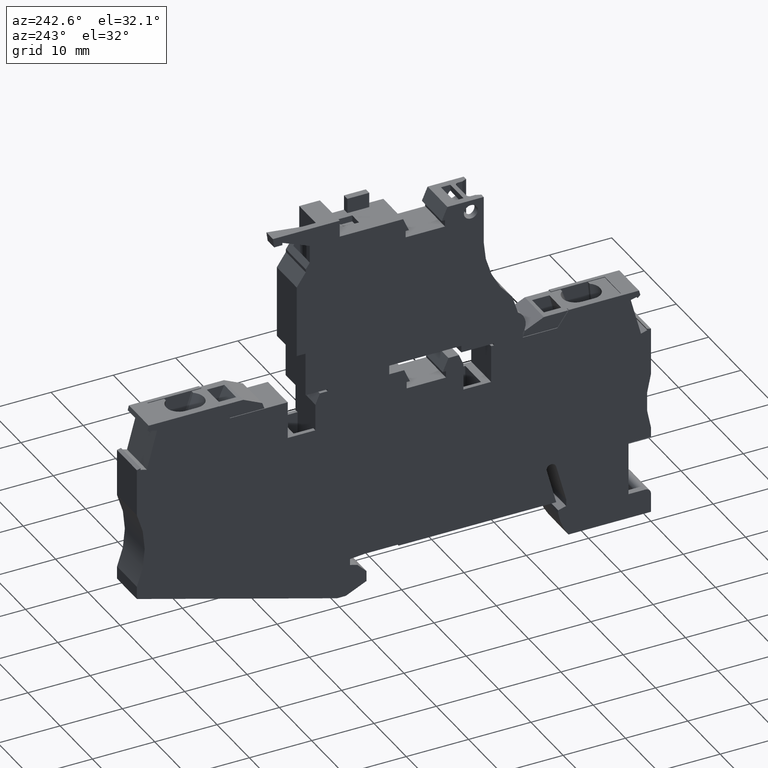
[diagram: clean part render]
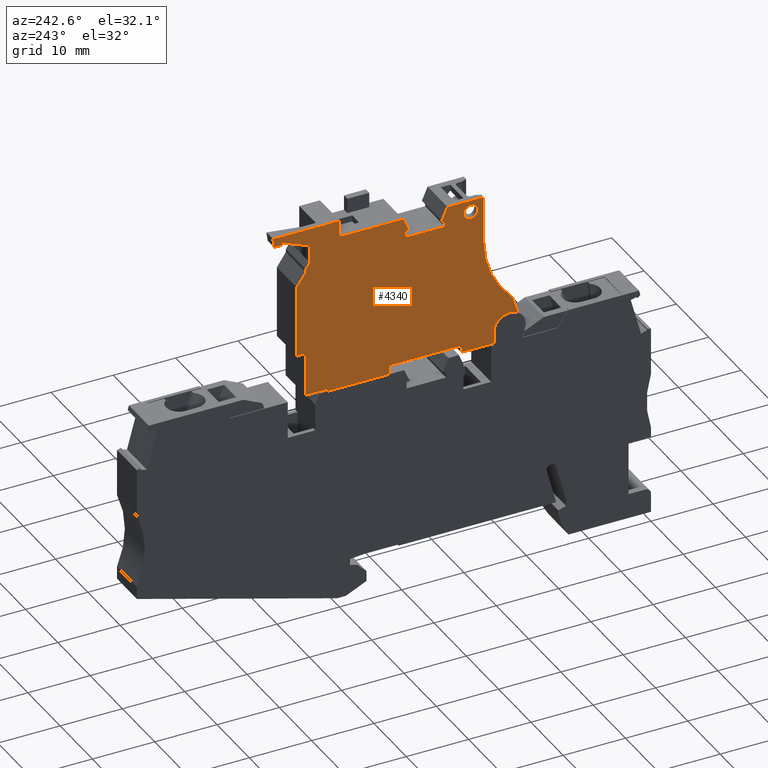
[diagram: same view with one face highlighted and labeled with its STEP entity id]
A machine part, auxiliary view. The second image highlights one B-rep face of the part: STEP entity #4340.
In plain terms, the highlighted planar face has unit normal (-1, -0, -0).
Its self-contained STEP definition (entity closure, byte-faithful):
#1060=CARTESIAN_POINT('',(53.0297787793713,35.8118002852794,
-5.65000000003927));
#1070=VERTEX_POINT('',#1060);
#1120=CARTESIAN_POINT('',(-2.48689957516035E-14,29.3005621830834,
-5.65000000003224));
#1130=DIRECTION('',(0.992546151641339,0.121869343405015,
-1.31610000675408E-13));
#1140=VECTOR('',#1130,1.);
#1150=LINE('',#1120,#1140);
#1440=CARTESIAN_POINT('',(43.7402238527537,30.9982478358278,
-5.65000000003798));
#1450=DIRECTION('',(-1.30635874114573E-13,-1.60400341780722E-14,-1.));
#1460=DIRECTION('',(0.992546151641338,0.121869343405017,
-1.31616922552198E-13));
#1470=AXIS2_PLACEMENT_3D('',#1440,#1450,#1460);
#1480=PLANE('',#1470);
#1490=CARTESIAN_POINT('',(-2.48689957516035E-14,29.6531906229255,
-5.65000000003224));
#1500=DIRECTION('',(-0.992546151641322,-0.121869343405148,
1.31610000675408E-13));
#1510=VECTOR('',#1500,1.);
#1520=LINE('',#1490,#1510);
#1530=CARTESIAN_POINT('',(56.5106633528564,36.5918276090379,
-5.65000000003973));
#1540=VERTEX_POINT('',#1530);
#1550=CARTESIAN_POINT('',(52.987124509066,36.1591914392788,
-5.65000000003927));
#1560=VERTEX_POINT('',#1550);
#1570=EDGE_CURVE('',#1540,#1560,#1520,.T.);
#1580=ORIENTED_EDGE('',*,*,#1570,.T.);
#1590=CARTESIAN_POINT('',(61.0035748384669,-3.5527136788005E-15,
-5.65000000003974));
#1600=DIRECTION('',(0.121869343405148,-0.992546151641322,0.));
#1610=VECTOR('',#1600,1.);
#1620=LINE('',#1590,#1610);
#1630=CARTESIAN_POINT('',(55.6575779494474,43.539650667049,
-5.65000000003973));
#1640=VERTEX_POINT('',#1630);
#1650=EDGE_CURVE('',#1640,#1540,#1620,.T.);
#1660=ORIENTED_EDGE('',*,*,#1650,.T.);
#1670=CARTESIAN_POINT('',(-2.48689957516035E-14,36.7057593976069,
-5.65000000003235));
#1680=DIRECTION('',(-0.992546151641322,-0.121869343405148,
1.31603061781504E-13));
#1690=VECTOR('',#1680,1.);
#1700=LINE('',#1670,#1690);
#1710=CARTESIAN_POINT('',(57.0471425610681,43.7102677477331,
-5.65000000003992));
#1720=VERTEX_POINT('',#1710);
#1730=EDGE_CURVE('',#1720,#1640,#1700,.T.);
#1740=ORIENTED_EDGE('',*,*,#1730,.T.);
#1750=CARTESIAN_POINT('',(62.4140885934219,-3.5527136788005E-15,
-5.65000000003992));
#1760=DIRECTION('',(0.121869343405148,-0.992546151641322,0.));
#1770=VECTOR('',#1760,1.);
#1780=LINE('',#1750,#1770);
#1790=CARTESIAN_POINT('',(55.6419397182918,55.1547265008776,
-5.65000000003992));
#1800=VERTEX_POINT('',#1790);
#1810=EDGE_CURVE('',#1800,#1720,#1780,.T.);
#1820=ORIENTED_EDGE('',*,*,#1810,.T.);
#1830=CARTESIAN_POINT('',(103.737130571274,-3.5527136788005E-15,
-5.65000000004532));
#1840=DIRECTION('',(0.657225128829871,-0.753694321349551,
-7.38298311375729E-14));
#1850=VECTOR('',#1840,1.);
#1860=LINE('',#1830,#1850);
#1870=CARTESIAN_POINT('',(53.9416353820199,57.1046058749299,
-5.65000000003972));
#1880=VERTEX_POINT('',#1870);
#1890=EDGE_CURVE('',#1880,#1800,#1860,.T.);
#1900=ORIENTED_EDGE('',*,*,#1890,.T.);
#1910=CARTESIAN_POINT('',(60.9531993399066,-3.5527136788005E-15,
-5.65000000003973));
#1920=DIRECTION('',(0.121869343405148,-0.992546151641322,
-6.93889390390723E-18));
#1930=VECTOR('',#1920,1.);
#1940=LINE('',#1910,#1930);
#1950=CARTESIAN_POINT('',(53.8827931730543,57.5838372093331,
-5.65000000003973));
#1960=VERTEX_POINT('',#1950);
#1970=EDGE_CURVE('',#1960,#1880,#1940,.T.);
#1980=ORIENTED_EDGE('',*,*,#1970,.T.);
#1990=CARTESIAN_POINT('',(104.096180426201,-3.5527136788005E-15,
-5.65000000004537));
#2000=DIRECTION('',(0.657225128829871,-0.753694321349551,
-7.38298311375729E-14));
#2010=VECTOR('',#2000,1.);
#2020=LINE('',#1990,#2010);
#2030=CARTESIAN_POINT('',(53.120587793257,58.4579210525331,
-5.65000000003964));
#2040=VERTEX_POINT('',#2030);
#2050=EDGE_CURVE('',#2040,#1960,#2020,.T.);
#2060=ORIENTED_EDGE('',*,*,#2050,.T.);
#2070=CARTESIAN_POINT('',(60.2983179609894,-3.5527136788005E-15,
-5.65000000003964));
#2080=DIRECTION('',(0.121869343405154,-0.992546151641321,0.));
#2090=VECTOR('',#2080,1.);
#2100=LINE('',#2070,#2090);
#2110=CARTESIAN_POINT('',(52.7779846196523,61.248199985694,
-5.65000000003964));
#2120=VERTEX_POINT('',#2110);
#2130=EDGE_CURVE('',#2120,#2040,#2100,.T.);
#2140=ORIENTED_EDGE('',*,*,#2130,.T.);
#2150=CARTESIAN_POINT('',(-2.48689957516035E-14,32.0150940717778,
-5.65000000003228));
#2160=DIRECTION('',(-0.874775745360367,-0.48452801294581,
1.22013510406305E-13));
#2170=VECTOR('',#2160,1.);
#2180=LINE('',#2150,#2170);
#2190=CARTESIAN_POINT('',(56.9384875633086,63.5526537097906,
-5.65000000004022));
#2200=VERTEX_POINT('',#2190);
#2210=EDGE_CURVE('',#2200,#2120,#2180,.T.);
#2220=ORIENTED_EDGE('',*,*,#2210,.T.);
#2230=CARTESIAN_POINT('',(64.74177224328,-3.5527136788005E-15,
-5.65000000004022));
#2240=DIRECTION('',(-0.121869343405153,0.992546151641321,0.));
#2250=VECTOR('',#2240,1.);
#2260=LINE('',#2230,#2250);
#2270=CARTESIAN_POINT('',(56.984872004232,63.174882754043,
-5.65000000004022));
#2280=VERTEX_POINT('',#2270);
#2290=EDGE_CURVE('',#2280,#2200,#2260,.T.);
#2300=ORIENTED_EDGE('',*,*,#2290,.T.);
#2310=CARTESIAN_POINT('',(-2.48689957516035E-14,56.1780202668951,
-5.65000000003267));
#2320=DIRECTION('',(-0.992546151641322,-0.121869343405148,
1.31603061781504E-13));
#2330=VECTOR('',#2320,1.);
#2340=LINE('',#2310,#2330);
#2350=CARTESIAN_POINT('',(58.2862248796813,63.3346687954348,
-5.6500000000404));
#2360=VERTEX_POINT('',#2350);
#2370=EDGE_CURVE('',#2360,#2280,#2340,.T.);
#2380=ORIENTED_EDGE('',*,*,#2370,.T.);
#2390=CARTESIAN_POINT('',(57.3829516360959,-3.5527136788005E-15,
-5.65000000003926));
#2400=DIRECTION('',(-0.0142604581498358,-0.999898314496708,
1.79006115486047E-14));
#2410=VECTOR('',#2400,1.);
#2420=LINE('',#2390,#2410);
#2430=CARTESIAN_POINT('',(58.3071379873647,64.8010298971474,
-5.65000000004042));
#2440=VERTEX_POINT('',#2430);
#2450=EDGE_CURVE('',#2440,#2360,#2420,.T.);
#2460=ORIENTED_EDGE('',*,*,#2450,.T.);
#2470=CARTESIAN_POINT('',(-2.48689957516035E-14,57.6418135618637,
-5.65000000003269));
#2480=DIRECTION('',(0.992546151641322,0.121869343405148,
-1.31603061781504E-13));
#2490=VECTOR('',#2480,1.);
#2500=LINE('',#2470,#2490);
#2510=CARTESIAN_POINT('',(47.6532108560745,63.4928921324403,
-5.65000000003901));
#2520=VERTEX_POINT('',#2510);
#2530=EDGE_CURVE('',#2520,#2440,#2500,.T.);
#2540=ORIENTED_EDGE('',*,*,#2530,.T.);
#2550=CARTESIAN_POINT('',(55.4491577370117,-3.5527136788005E-15,
-5.65000000003901));
#2560=DIRECTION('',(-0.121869343405147,0.992546151641322,0.));
#2570=VECTOR('',#2560,1.);
#2580=LINE('',#2550,#2570);
#2590=CARTESIAN_POINT('',(47.9798206964009,60.832868446037,
-5.65000000003901));
#2600=VERTEX_POINT('',#2590);
#2610=EDGE_CURVE('',#2600,#2520,#2580,.T.);
#2620=ORIENTED_EDGE('',*,*,#2610,.T.);
#2630=CARTESIAN_POINT('',(-2.48689957516035E-14,54.9416872296293,
-5.65000000003265));
#2640=DIRECTION('',(0.992546151641322,0.121869343405148,
-1.31603061781504E-13));
#2650=VECTOR('',#2640,1.);
#2660=LINE('',#2630,#2650);
#2670=CARTESIAN_POINT('',(37.8907575013103,59.5940872517062,
-5.65000000003767));
#2680=VERTEX_POINT('',#2670);
#2690=EDGE_CURVE('',#2680,#2600,#2660,.T.);
#2700=ORIENTED_EDGE('',*,*,#2690,.T.);
#2710=CARTESIAN_POINT('',(19.9852219604105,-3.5527136788005E-15,
-5.65000000003438));
#2720=DIRECTION('',(0.287750497360487,0.957705409439037,
-5.295763827462E-14));
#2730=VECTOR('',#2720,1.);
#2740=LINE('',#2710,#2730);
#2750=CARTESIAN_POINT('',(37.2291348310475,57.3920420210964,
-5.65000000003755));
#2760=VERTEX_POINT('',#2750);
#2770=EDGE_CURVE('',#2760,#2680,#2740,.T.);
#2780=ORIENTED_EDGE('',*,*,#2770,.T.);
#2790=CARTESIAN_POINT('',(-2.48689957516035E-14,52.8208790480712,
-5.65000000003261));
#2800=DIRECTION('',(-0.992546151641322,-0.121869343405148,
1.31603061781504E-13));
#2810=VECTOR('',#2800,1.);
#2820=LINE('',#2790,#2810);
#2830=CARTESIAN_POINT('',(37.7530984227555,57.4563766606334,
-5.65000000003762));
#2840=VERTEX_POINT('',#2830);
#2850=EDGE_CURVE('',#2840,#2760,#2820,.T.);
#2860=ORIENTED_EDGE('',*,*,#2850,.T.);
#2870=CARTESIAN_POINT('',(44.8078544021033,-3.5527136788005E-15,
-5.65000000003762));
#2880=DIRECTION('',(-0.121869343405148,0.992546151641322,0.));
#2890=VECTOR('',#2880,1.);
#2900=LINE('',#2870,#2890);
#2910=CARTESIAN_POINT('',(37.8834986201354,56.3943522788952,
-5.65000000003762));
#2920=VERTEX_POINT('',#2910);
#2930=EDGE_CURVE('',#2920,#2840,#2900,.T.);
#2940=ORIENTED_EDGE('',*,*,#2930,.T.);
#2950=CARTESIAN_POINT('',(-2.48689957516035E-14,51.7428435353538,
-5.6500000000326));
#2960=DIRECTION('',(0.992546151641315,0.121869343405205,
-1.31610000675408E-13));
#2970=VECTOR('',#2960,1.);
#2980=LINE('',#2950,#2970);
#2990=CARTESIAN_POINT('',(31.6056442140606,55.6235286822325,
-5.65000000003679));
#3000=VERTEX_POINT('',#2990);
#3010=EDGE_CURVE('',#3000,#2920,#2980,.T.);
#3020=ORIENTED_EDGE('',*,*,#3010,.T.);
#3030=CARTESIAN_POINT('',(38.4353547591787,-3.5527136788005E-15,
-5.65000000003679));
#3040=DIRECTION('',(0.121869343405148,-0.992546151641322,0.));
#3050=VECTOR('',#3040,1.);
#3060=LINE('',#3030,#3050);
#3070=CARTESIAN_POINT('',(31.4752440166806,56.6855530639715,
-5.65000000003679));
#3080=VERTEX_POINT('',#3070);
#3090=EDGE_CURVE('',#3080,#3000,#3060,.T.);
#3100=ORIENTED_EDGE('',*,*,#3090,.T.);
#3110=CARTESIAN_POINT('',(-2.48689957516035E-14,52.8208790480716,
-5.65000000003261));
#3120=DIRECTION('',(-0.992546151641322,-0.121869343405148,
1.31603061781504E-13));
#3130=VECTOR('',#3120,1.);
#3140=LINE('',#3110,#3130);
#3150=CARTESIAN_POINT('',(31.99920760839,56.7498877035087,
-5.65000000003686));
#3160=VERTEX_POINT('',#3150);
#3170=EDGE_CURVE('',#3160,#3080,#3140,.T.);
#3180=ORIENTED_EDGE('',*,*,#3170,.T.);
#3190=CARTESIAN_POINT('',(65.7260861590793,-3.5527136788005E-15,
-5.65000000004035));
#3200=DIRECTION('',(0.510892985900963,-0.859644320028463,
-5.30131494258512E-14));
#3210=VECTOR('',#3200,1.);
#3220=LINE('',#3190,#3210);
#3230=CARTESIAN_POINT('',(30.8245150026392,58.7264617692738,
-5.65000000003673));
#3240=VERTEX_POINT('',#3230);
#3250=EDGE_CURVE('',#3240,#3160,#3220,.T.);
#3260=ORIENTED_EDGE('',*,*,#3250,.T.);
#3270=CARTESIAN_POINT('',(-2.48689957516035E-14,54.9416872296297,
-5.65000000003265));
#3280=DIRECTION('',(0.992546151641322,0.121869343405148,
-1.31603061781504E-13));
#3290=VECTOR('',#3280,1.);
#3300=LINE('',#3270,#3290);
#3310=CARTESIAN_POINT('',(25.0586748890965,58.0185056226961,
-5.65000000003597));
#3320=VERTEX_POINT('',#3310);
#3330=EDGE_CURVE('',#3320,#3240,#3300,.T.);
#3340=ORIENTED_EDGE('',*,*,#3330,.T.);
#3350=CARTESIAN_POINT('',(32.182451626222,-3.5527136788005E-15,
-5.65000000003597));
#3360=DIRECTION('',(-0.121869343405148,0.992546151641322,0.));
#3370=VECTOR('',#3360,1.);
#3380=LINE('',#3350,#3370);
#3390=CARTESIAN_POINT('',(25.9845191247297,50.4781094293561,
-5.65000000003499));
#3400=VERTEX_POINT('',#3390);
#3410=EDGE_CURVE('',#3400,#3320,#3380,.T.);
#3420=ORIENTED_EDGE('',*,*,#3410,.T.);
#3430=CARTESIAN_POINT('',(11.0651328052447,48.9250763869471,
-5.650000000034));
#3440=DIRECTION('',(6.55111548403831E-14,8.21254566076691E-15,1.));
#3450=DIRECTION('',(0.990506268008274,0.13746757085335,
-6.60181681963679E-14));
#3460=AXIS2_PLACEMENT_3D('',#3430,#3440,#3450);
#3470=CIRCLE('',#3460,14.999999992695);
#3480=CARTESIAN_POINT('',(22.7103002633189,39.4704439427819,
-5.65000000003468));
#3490=VERTEX_POINT('',#3480);
#3500=EDGE_CURVE('',#3490,#3400,#3470,.T.);
#3510=ORIENTED_EDGE('',*,*,#3500,.T.);
#3520=CARTESIAN_POINT('',(15.4441640214047,-3.5527136788005E-15,
-5.65000000003378));
#3530=DIRECTION('',(0.181048319411903,0.983474202019619,
-3.94267951620009E-14));
#3540=VECTOR('',#3530,1.);
#3550=LINE('',#3520,#3540);
#3560=CARTESIAN_POINT('',(22.1629120977645,36.4969717721368,
-5.65000000003525));
#3570=VERTEX_POINT('',#3560);
#3580=EDGE_CURVE('',#3570,#3490,#3550,.T.);
#3590=ORIENTED_EDGE('',*,*,#3580,.T.);
#3600=CARTESIAN_POINT('',(23.7235978425175,34.4803508344976,
-5.65000000003542));
#3610=DIRECTION('',(-1.30635874114573E-13,-1.60400341780722E-14,-1.));
#3620=DIRECTION('',(-0.951056516295151,0.309016994374956,
1.19285456187198E-13));
#3630=AXIS2_PLACEMENT_3D('',#3600,#3610,#3620);
#3640=CIRCLE('',#3630,2.54999999999999);
#3650=CARTESIAN_POINT('',(26.2654752253805,34.683720867908,
-5.65000000003575));
#3660=VERTEX_POINT('',#3650);
#3670=EDGE_CURVE('',#3570,#3660,#3640,.T.);
#3680=ORIENTED_EDGE('',*,*,#3670,.F.);
#3690=CARTESIAN_POINT('',(30.5241006626255,-3.5527136788005E-15,
-5.65000000003575));
#3700=DIRECTION('',(0.121869343405147,-0.992546151641322,0.));
#3710=VECTOR('',#3700,1.);
#3720=LINE('',#3690,#3710);
#3730=CARTESIAN_POINT('',(26.4838744989562,32.9050015242891,
-5.65000000003575));
#3740=VERTEX_POINT('',#3730);
#3750=EDGE_CURVE('',#3660,#3740,#3720,.T.);
#3760=ORIENTED_EDGE('',*,*,#3750,.F.);
#3770=CARTESIAN_POINT('',(-2.48689957516035E-14,29.6531906229272,
-5.65000000003224));
#3780=DIRECTION('',(-0.992546151641322,-0.121869343405147,
1.31603061781504E-13));
#3790=VECTOR('',#3780,1.);
#3800=LINE('',#3770,#3790);
#3810=CARTESIAN_POINT('',(31.6809485780498,33.5431219830705,
-5.65000000003644));
#3820=VERTEX_POINT('',#3810);
#3830=EDGE_CURVE('',#3820,#3740,#3800,.T.);
#3840=ORIENTED_EDGE('',*,*,#3830,.T.);
#3850=CARTESIAN_POINT('',(35.7995260820537,-3.5527136788005E-15,
-5.65000000003644));
#3860=DIRECTION('',(0.121869343405147,-0.992546151641322,0.));
#3870=VECTOR('',#3860,1.);
#3880=LINE('',#3850,#3870);
#3890=CARTESIAN_POINT('',(31.5468923003041,34.6349227498759,
-5.65000000003644));
#3900=VERTEX_POINT('',#3890);
#3910=EDGE_CURVE('',#3900,#3820,#3880,.T.);
#3920=ORIENTED_EDGE('',*,*,#3910,.T.);
#3930=CARTESIAN_POINT('',(-2.48689957516035E-14,30.7614514309316,
-5.65000000003226));
#3940=DIRECTION('',(-0.992546151641321,-0.121869343405154,
1.31610000675408E-13));
#3950=VECTOR('',#3940,1.);
#3960=LINE('',#3930,#3950);
#3970=CARTESIAN_POINT('',(43.0268613348574,36.0444857069625,
-5.65000000003796));
#3980=VERTEX_POINT('',#3970);
#3990=EDGE_CURVE('',#3980,#3900,#3960,.T.);
#4000=ORIENTED_EDGE('',*,*,#3990,.T.);
#4010=CARTESIAN_POINT('',(47.4525676853578,-3.5527136788005E-15,
-5.65000000003796));
#4020=DIRECTION('',(-0.121869343405148,0.992546151641322,0.));
#4030=VECTOR('',#4020,1.);
#4040=LINE('',#4010,#4030);
#4050=CARTESIAN_POINT('',(43.2035718829085,34.6052937861575,
-5.65000000003796));
#4060=VERTEX_POINT('',#4050);
#4070=EDGE_CURVE('',#4060,#3980,#4040,.T.);
#4080=ORIENTED_EDGE('',*,*,#4070,.T.);
#4090=EDGE_CURVE('',#4060,#1070,#1150,.T.);
#4100=ORIENTED_EDGE('',*,*,#4090,.F.);
#4110=CARTESIAN_POINT('',(57.426914952537,-3.5527136788005E-15,
-5.65000000003927));
#4120=DIRECTION('',(-0.121869343405014,0.992546151641338,0.));
#4130=VECTOR('',#4120,1.);
#4140=LINE('',#4110,#4130);
#4150=EDGE_CURVE('',#1070,#1560,#4140,.T.);
#4160=ORIENTED_EDGE('',*,*,#4150,.F.);
#4170=EDGE_LOOP('',(#4160,#4100,#4080,#4000,#3920,#3840,#3760,#3680,
#3590,#3510,#3420,#3340,#3260,#3180,#3100,#3020,#2940,#2860,#2780,#2700,
#2620,#2540,#2460,#2380,#2300,#2220,#2140,#2060,#1980,#1900,#1820,#1740,
#1660,#1580));
#4180=FACE_OUTER_BOUND('',#4170,.T.);
#4190=CARTESIAN_POINT('',(27.3311942732689,56.3832672519477,
-5.65000000003624));
#4200=DIRECTION('',(6.55111548403841E-14,8.21254566075881E-15,1.));
#4210=DIRECTION('',(0.992546151641322,0.121869343405147,
-6.60237021737635E-14));
#4220=AXIS2_PLACEMENT_3D('',#4190,#4200,#4210);
#4230=CIRCLE('',#4220,1.12499999945212);
#4240=CARTESIAN_POINT('',(28.4478086933216,56.5203702632117,
-5.65000000003632));
#4250=VERTEX_POINT('',#4240);
#4260=CARTESIAN_POINT('',(26.2145798532162,56.2461642406837,
-5.65000000003617));
#4270=VERTEX_POINT('',#4260);
#4280=EDGE_CURVE('',#4250,#4270,#4230,.T.);
#4290=ORIENTED_EDGE('',*,*,#4280,.T.);
#4300=EDGE_CURVE('',#4270,#4250,#4230,.T.);
#4310=ORIENTED_EDGE('',*,*,#4300,.T.);
#4320=EDGE_LOOP('',(#4310,#4290));
#4330=FACE_BOUND('',#4320,.T.);
#4340=ADVANCED_FACE('',(#4180,#4330),#1480,.T.);